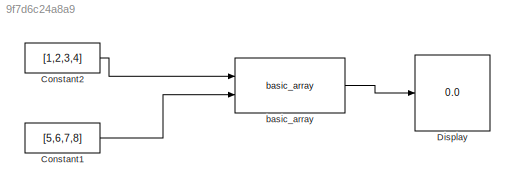
MODEL slx_9f7d6c24a8a9
KIND model
CONFIG AbsTol = auto
CONFIG FixedStep = 0.1
CONFIG MaxStep = auto
CONFIG MinStep = auto
CONFIG RelTol = 1e-3
CONFIG SampleTimeConstraint = Unconstrained
CONFIG Solver = FixedStepDiscrete
CONFIG SolverMode = Auto
CONFIG SolverName = FixedStepDiscrete
CONFIG StartTime = 0.0
CONFIG StopTime = 100.0
BLOCK [Constant] Constant1
  OutDataTypeStr = uint8
  SampleTime = 1
  Value = [5,6,7,8]
  VectorParams1D = off
BLOCK [Constant] Constant2
  OutDataTypeStr = uint8
  SampleTime = 1
  Value = [1,2,3,4]
  VectorParams1D = off
BLOCK [Display] Display
  Decimation = 1
  Ports = [1]
BLOCK [Reference] basic_array  REF=basic_array_library/basic_array
  Description = Performs cosine function
  Ports = [2, 1]
  SourceBlock = basic_array_library/basic_array
  SourceType = Library Function
LINE Constant1:1 -> basic_array:2
LINE Constant2:1 -> basic_array:1
LINE basic_array:1 -> Display:1
